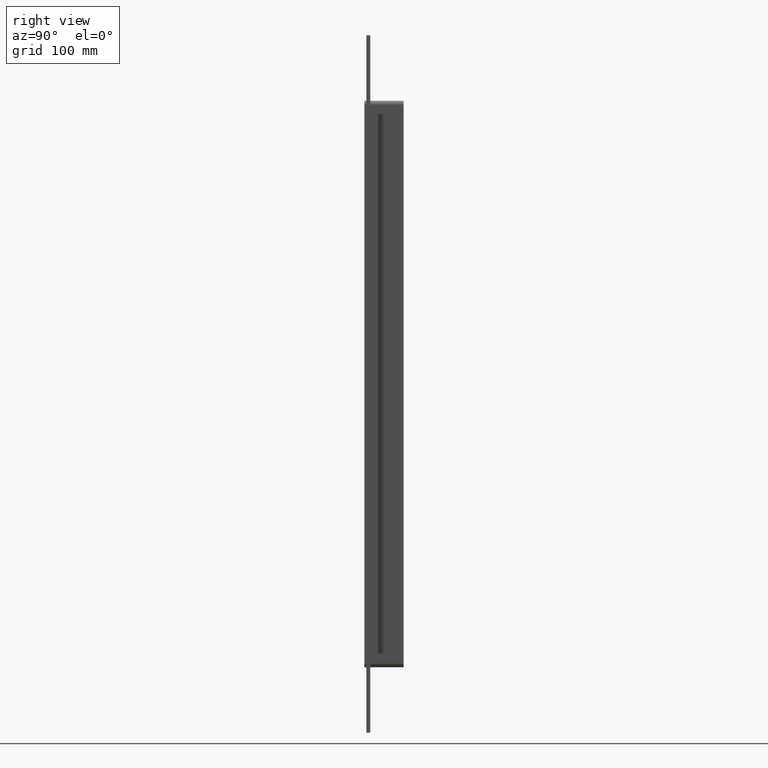
[diagram: clean part render]
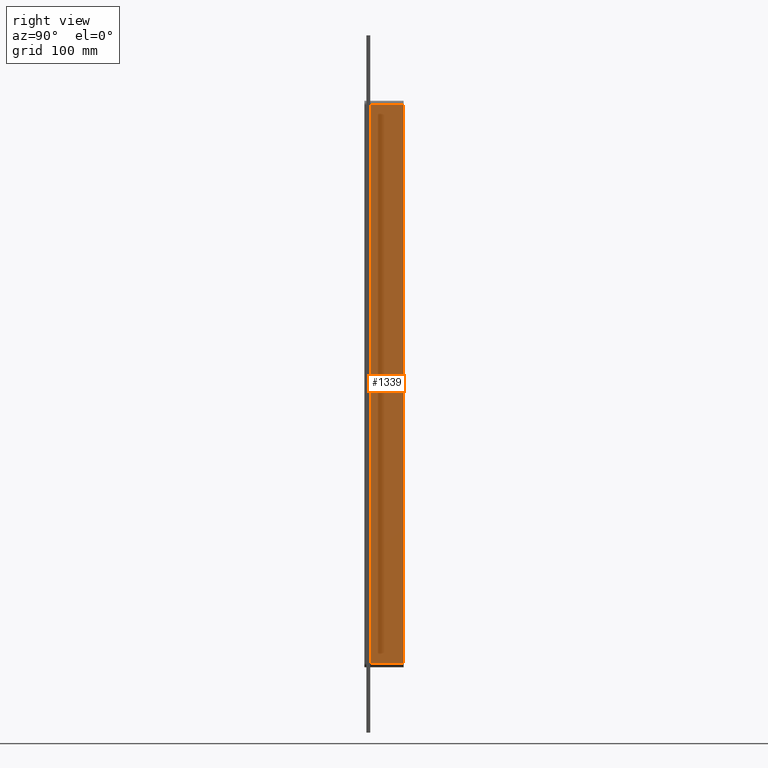
[diagram: same view with one face highlighted and labeled with its STEP entity id]
A machine part, right view. The second image highlights one B-rep face of the part: STEP entity #1339.
In plain terms, the highlighted planar face has unit normal (1, 0, 0).
Its self-contained STEP definition (entity closure, byte-faithful):
#919=CARTESIAN_POINT('',(66.25,6.000000000000001,-426.99999999999989));
#920=VERTEX_POINT('',#919);
#928=CARTESIAN_POINT('',(66.25,6.000000000000001,427.00000000000011));
#929=VERTEX_POINT('',#928);
#930=CARTESIAN_POINT('',(66.25,6.000000000000001,427.00000000000011));
#931=DIRECTION('',(0.0,0.0,-1.0));
#932=VECTOR('',#931,854.0);
#933=LINE('',#930,#932);
#934=EDGE_CURVE('',#929,#920,#933,.T.);
#1266=CARTESIAN_POINT('',(66.25,57.0,427.00000000000011));
#1267=VERTEX_POINT('',#1266);
#1268=CARTESIAN_POINT('',(66.25,6.000000000000001,427.00000000000011));
#1269=DIRECTION('',(0.0,1.0,0.0));
#1270=VECTOR('',#1269,51.0);
#1271=LINE('',#1268,#1270);
#1272=EDGE_CURVE('',#929,#1267,#1271,.T.);
#1316=CARTESIAN_POINT('',(66.25,0.0,433.00000000000011));
#1317=DIRECTION('',(1.0,0.0,0.0));
#1318=DIRECTION('',(0.0,0.0,-1.0));
#1319=AXIS2_PLACEMENT_3D('',#1316,#1317,#1318);
#1320=PLANE('',#1319);
#1321=ORIENTED_EDGE('',*,*,#934,.T.);
#1322=CARTESIAN_POINT('',(66.25,57.0,-426.99999999999989));
#1323=VERTEX_POINT('',#1322);
#1324=CARTESIAN_POINT('',(66.25,57.0,-426.99999999999989));
#1325=DIRECTION('',(0.0,-1.0,0.0));
#1326=VECTOR('',#1325,51.0);
#1327=LINE('',#1324,#1326);
#1328=EDGE_CURVE('',#1323,#920,#1327,.T.);
#1329=ORIENTED_EDGE('',*,*,#1328,.F.);
#1330=CARTESIAN_POINT('',(66.25,57.0,427.00000000000011));
#1331=DIRECTION('',(0.0,0.0,-1.0));
#1332=VECTOR('',#1331,854.0);
#1333=LINE('',#1330,#1332);
#1334=EDGE_CURVE('',#1267,#1323,#1333,.T.);
#1335=ORIENTED_EDGE('',*,*,#1334,.F.);
#1336=ORIENTED_EDGE('',*,*,#1272,.F.);
#1337=EDGE_LOOP('',(#1321,#1329,#1335,#1336));
#1338=FACE_OUTER_BOUND('',#1337,.T.);
#1339=ADVANCED_FACE('',(#1338),#1320,.T.);